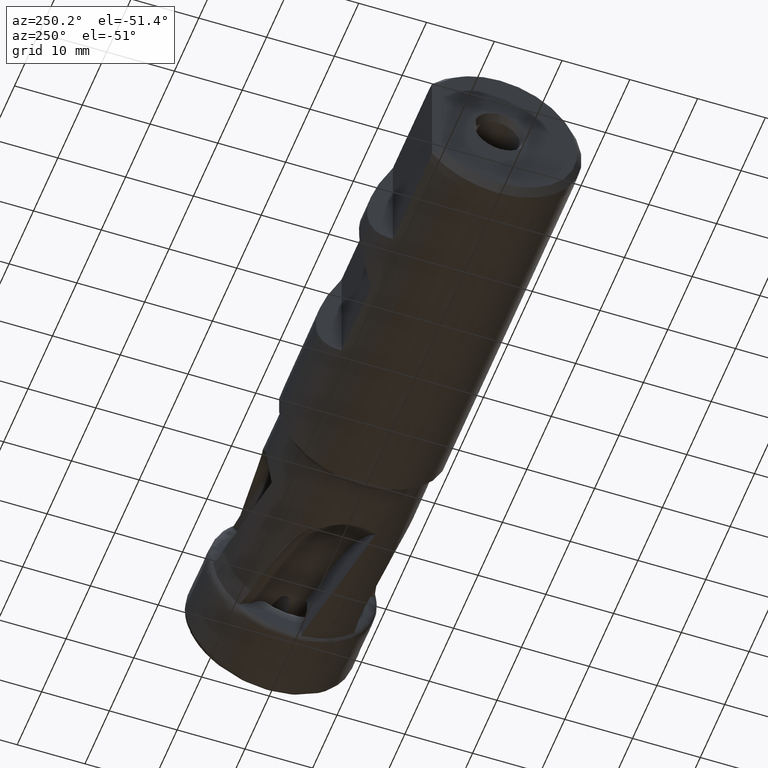
[diagram: clean part render]
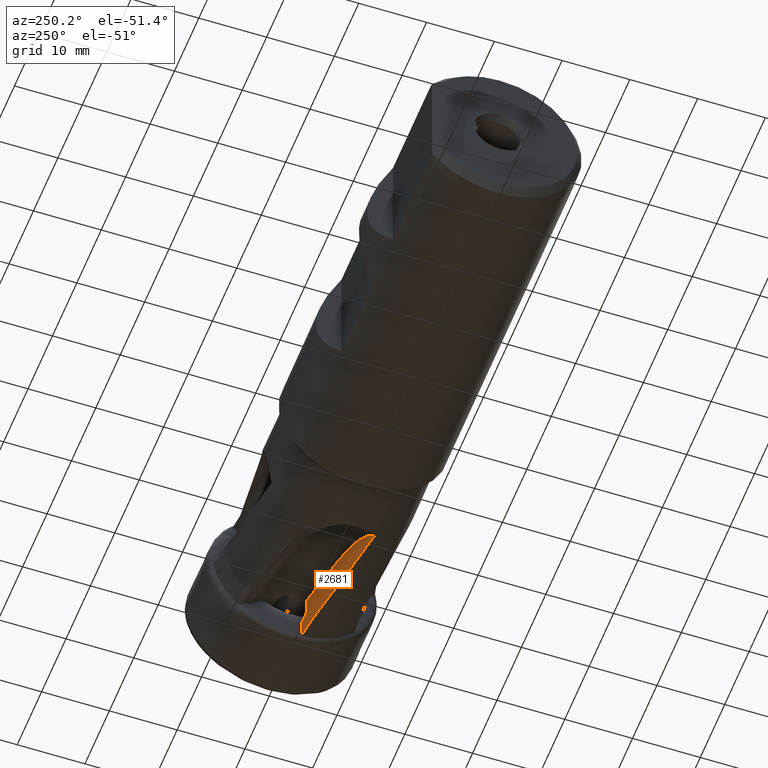
[diagram: same view with one face highlighted and labeled with its STEP entity id]
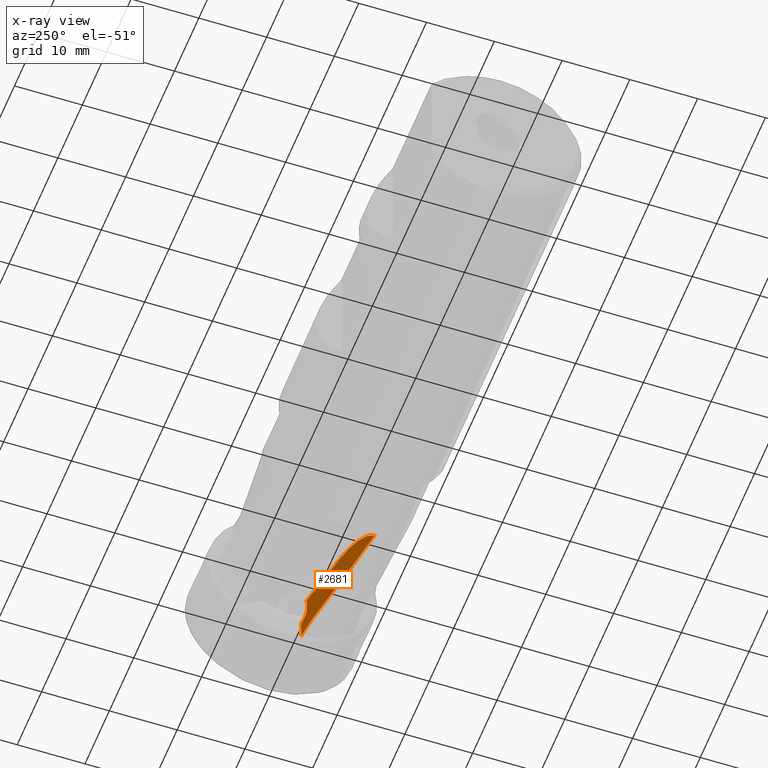
[diagram: x-ray of the same camera — body ghosted, the highlighted face saturated]
A machine part, auxiliary view. The second image highlights one B-rep face of the part: STEP entity #2681.
The next image is the same camera in x-ray: the body ghosted, the highlighted face saturated — about 0% of this face is hidden behind the body in this view.
In plain terms, the highlighted planar face has unit normal (0.2079, -0.9781, 0).
Its self-contained STEP definition (entity closure, byte-faithful):
#256 = FACE_OUTER_BOUND ( 'NONE', #310, .T. ) ;
#310 = EDGE_LOOP ( 'NONE', ( #6669, #6823, #6784, #6807, #6691, #6718, #6791, #6736, #6643, #6746 ) ) ;
#434 = DIRECTION ( 'NONE',  ( 0.2079116908177435500, -0.9781476007338090200, 2.821495148425929200E-017 ) ) ;
#526 = CARTESIAN_POINT ( 'NONE',  ( -19.79513419432084800, -3.186895120494536400, -5.463532229821575800 ) ) ;
#535 = PLANE ( 'NONE',  #5286 ) ;
#574 = DIRECTION ( 'NONE',  ( 0.9781476007338090200, 0.2079116908177435500, 0.0000000000000000000 ) ) ;
#1327 = CARTESIAN_POINT ( 'NONE',  ( -11.53078380057644600, -1.430253216364072700, -6.531136938714817900 ) ) ;
#1330 = CARTESIAN_POINT ( 'NONE',  ( -10.01161172345738500, -1.107343223066565200, -9.148180293830444400 ) ) ;
#1331 = CARTESIAN_POINT ( 'NONE',  ( -12.83564090980896600, -1.707609156973199700, -11.34217664150144800 ) ) ;
#1344 = CARTESIAN_POINT ( 'NONE',  ( -28.99299443426411200, -5.141960667818126200, -10.25286011270081600 ) ) ;
#1365 = CARTESIAN_POINT ( 'NONE',  ( -10.00000000000000200, -1.104875075053400900, -11.91889890336040000 ) ) ;
#1371 = CARTESIAN_POINT ( 'NONE',  ( -19.77760209485570200, -3.183168557713368600, -5.663532229821576000 ) ) ;
#1375 = CARTESIAN_POINT ( 'NONE',  ( -11.49415433721580400, -1.422467383576316900, -7.567804569483675100 ) ) ;
#1383 = CARTESIAN_POINT ( 'NONE',  ( -11.30340768764271600, -1.381922931592988800, -5.663532229821574200 ) ) ;
#2002 =( BOUNDED_CURVE ( )  B_SPLINE_CURVE ( 3, ( #7104, #7106, #7084, #7082 ),
 .UNSPECIFIED., .F., .T. ) 
 B_SPLINE_CURVE_WITH_KNOTS ( ( 4, 4 ),
 ( 1.662960663031078300, 1.663231584771234000 ),
 .UNSPECIFIED. ) 
 CURVE ( )  GEOMETRIC_REPRESENTATION_ITEM ( )  RATIONAL_B_SPLINE_CURVE ( ( 1.000000000000000000, 0.9999999938834509500, 0.9999999938834509500, 1.000000000000000000 ) ) 
 REPRESENTATION_ITEM ( '' )  );
#2045 = B_SPLINE_CURVE_WITH_KNOTS ( 'NONE', 3,
 ( #4202, #4257, #4311, #4213, #4364, #4385, #4350, #4337, #4260, #4392 ),
 .UNSPECIFIED., .F., .F.,
 ( 4, 2, 2, 1, 1, 4 ),
 ( 4.306205707980489400E-005, 0.0001941456705426209500, 0.0003452292840054369600, 0.0006473965109310639000, 0.001251730964782312600, 0.002460399872484805200 ),
 .UNSPECIFIED. ) ;
#2118 = EDGE_CURVE ( 'NONE', #4088, #4112, #4028, .T. ) ;
#2175 = EDGE_CURVE ( 'NONE', #4177, #4174, #6444, .T. ) ;
#2181 = EDGE_CURVE ( 'NONE', #4162, #4083, #6452, .T. ) ;
#2187 = EDGE_CURVE ( 'NONE', #4086, #4162, #4030, .T. ) ;
#2198 = EDGE_CURVE ( 'NONE', #2805, #4086, #6478, .T. ) ;
#2203 = EDGE_CURVE ( 'NONE', #4083, #4174, #4037, .T. ) ;
#2222 = EDGE_CURVE ( 'NONE', #4112, #4177, #4052, .T. ) ;
#2224 = EDGE_CURVE ( 'NONE', #4143, #4088, #4036, .T. ) ;
#2681 = ADVANCED_FACE ( 'NONE', ( #256 ), #535, .F. ) ;
#2804 = VERTEX_POINT ( 'NONE', #6057 ) ;
#2805 = VERTEX_POINT ( 'NONE', #6060 ) ;
#2959 = CARTESIAN_POINT ( 'NONE',  ( -12.83564090980896600, -1.707609156973199700, -11.34217664150144800 ) ) ;
#2960 = CARTESIAN_POINT ( 'NONE',  ( -28.99299443426411200, -5.141960667818126200, -10.25286011270081600 ) ) ;
#2975 = CARTESIAN_POINT ( 'NONE',  ( -23.90021819924637100, -4.059457661948039600, -10.79575134673645000 ) ) ;
#2976 = CARTESIAN_POINT ( 'NONE',  ( -18.46949985436410900, -2.905122843161645400, -11.16188626155323700 ) ) ;
#3243 = EDGE_CURVE ( 'NONE', #2804, #4143, #2002, .T. ) ;
#3378 = EDGE_CURVE ( 'NONE', #2804, #2805, #2045, .T. ) ;
#3607 = CARTESIAN_POINT ( 'NONE',  ( -11.49415433721580400, -1.422467383576316900, -7.567804569483675100 ) ) ;
#3608 = CARTESIAN_POINT ( 'NONE',  ( -11.46317074377286200, -1.415881617485904100, -8.444685786414662900 ) ) ;
#3612 = CARTESIAN_POINT ( 'NONE',  ( -10.85742619105378500, -1.287126638109602000, -9.090403472630535800 ) ) ;
#3613 = CARTESIAN_POINT ( 'NONE',  ( -10.01161172345738500, -1.107343223066565200, -9.148180293830444400 ) ) ;
#3622 = CARTESIAN_POINT ( 'NONE',  ( -11.57922722882525200, -1.440550184908146100, -5.160116743999943800 ) ) ;
#3624 = DIRECTION ( 'NONE',  ( -0.03531082380062419000, -0.007505547296796036100, 0.9993481938154973300 ) ) ;
#3634 = CARTESIAN_POINT ( 'NONE',  ( -0.9747636636059224800, 0.8134981288697190600, -5.663532229821572500 ) ) ;
#3640 = DIRECTION ( 'NONE',  ( 0.9781476007338090200, 0.2079116908177435500, 1.949071483248805600E-016 ) ) ;
#4028 =( BOUNDED_CURVE ( )  B_SPLINE_CURVE ( 3, ( #2959, #2976, #2975, #2960 ),
 .UNSPECIFIED., .F., .T. ) 
 B_SPLINE_CURVE_WITH_KNOTS ( ( 4, 4 ),
 ( 1.720227961580528700, 2.035655008558146900 ),
 .UNSPECIFIED. ) 
 CURVE ( )  GEOMETRIC_REPRESENTATION_ITEM ( )  RATIONAL_B_SPLINE_CURVE ( ( 1.000000000000000000, 0.9917259865312512100, 0.9917259865312512100, 1.000000000000000000 ) ) 
 REPRESENTATION_ITEM ( '' )  );
#4030 =( BOUNDED_CURVE ( )  B_SPLINE_CURVE ( 3, ( #3613, #3612, #3608, #3607 ),
 .UNSPECIFIED., .F., .F. ) 
 B_SPLINE_CURVE_WITH_KNOTS ( ( 4, 4 ),
 ( 3.840127946222913600, 5.363319220252169100 ),
 .UNSPECIFIED. ) 
 CURVE ( )  GEOMETRIC_REPRESENTATION_ITEM ( )  RATIONAL_B_SPLINE_CURVE ( ( 1.000000000000000000, 0.8158238799416693800, 0.8158238799416693800, 1.000000000000000000 ) ) 
 REPRESENTATION_ITEM ( '' )  );
#4036 =( BOUNDED_CURVE ( )  B_SPLINE_CURVE ( 3, ( #8087, #8011, #8090, #7985 ),
 .UNSPECIFIED., .F., .T. ) 
 B_SPLINE_CURVE_WITH_KNOTS ( ( 4, 4 ),
 ( 2.598839765245192000, 2.627777369117606700 ),
 .UNSPECIFIED. ) 
 CURVE ( )  GEOMETRIC_REPRESENTATION_ITEM ( )  RATIONAL_B_SPLINE_CURVE ( ( 1.000000000000000000, 0.9999302191408863100, 0.9999302191408863100, 1.000000000000000000 ) ) 
 REPRESENTATION_ITEM ( '' )  );
#4037 =( BOUNDED_CURVE ( )  B_SPLINE_CURVE ( 3, ( #8070, #8085, #8107, #8056 ),
 .UNSPECIFIED., .F., .F. ) 
 B_SPLINE_CURVE_WITH_KNOTS ( ( 4, 4 ),
 ( 5.363319220252154900, 5.959034245694238200 ),
 .UNSPECIFIED. ) 
 CURVE ( )  GEOMETRIC_REPRESENTATION_ITEM ( )  RATIONAL_B_SPLINE_CURVE ( ( 1.000000000000000000, 0.9706449628720106300, 0.9706449628720106300, 1.000000000000000000 ) ) 
 REPRESENTATION_ITEM ( '' )  );
#4052 = B_SPLINE_CURVE_WITH_KNOTS ( 'NONE', 3,
 ( #8115, #8096, #8052, #7925, #7926, #8048, #8049, #8105, #8073, #8113 ),
 .UNSPECIFIED., .F., .F.,
 ( 4, 2, 2, 2, 4 ),
 ( 2.602085213965210600E-017, 0.002726486009351704500, 0.005452972018703383000, 0.008179458028055060600, 0.01090594403740674000 ),
 .UNSPECIFIED. ) ;
#4083 = VERTEX_POINT ( 'NONE', #1327 ) ;
#4086 = VERTEX_POINT ( 'NONE', #1330 ) ;
#4088 = VERTEX_POINT ( 'NONE', #1331 ) ;
#4112 = VERTEX_POINT ( 'NONE', #1344 ) ;
#4143 = VERTEX_POINT ( 'NONE', #1365 ) ;
#4162 = VERTEX_POINT ( 'NONE', #1375 ) ;
#4174 = VERTEX_POINT ( 'NONE', #1383 ) ;
#4177 = VERTEX_POINT ( 'NONE', #1371 ) ;
#4202 = CARTESIAN_POINT ( 'NONE',  ( -9.984808140878367800, -1.101645945713131100, -11.91919780061954600 ) ) ;
#4213 = CARTESIAN_POINT ( 'NONE',  ( -10.02596953286447600, -1.110395069667247800, -11.72212680697837000 ) ) ;
#4257 = CARTESIAN_POINT ( 'NONE',  ( -10.00079085500450700, -1.105043176473938600, -11.87133277982076700 ) ) ;
#4260 = CARTESIAN_POINT ( 'NONE',  ( -9.995245995055196200, -1.103864580108170300, -9.893314923183144300 ) ) ;
#4311 = CARTESIAN_POINT ( 'NONE',  ( -10.01217807675180700, -1.107463605175516200, -11.82233532588232600 ) ) ;
#4337 = CARTESIAN_POINT ( 'NONE',  ( -10.00494491749276800, -1.105926149713406100, -10.50277777911626100 ) ) ;
#4350 = CARTESIAN_POINT ( 'NONE',  ( -10.01626974908634400, -1.108333316978426000, -11.21381752779342700 ) ) ;
#4364 = CARTESIAN_POINT ( 'NONE',  ( -10.02355266057867100, -1.109881347604179300, -11.67091448137911100 ) ) ;
#4385 = CARTESIAN_POINT ( 'NONE',  ( -10.02112494298774700, -1.109365320300346800, -11.51854883186560300 ) ) ;
#4392 = CARTESIAN_POINT ( 'NONE',  ( -9.988785192125730500, -1.102491294051856100, -9.487006212384189400 ) ) ;
#5286 = AXIS2_PLACEMENT_3D ( 'NONE', #526, #434, #574 ) ;
#6057 = CARTESIAN_POINT ( 'NONE',  ( -9.984808140878367800, -1.101645945713131100, -11.91919780061954600 ) ) ;
#6060 = CARTESIAN_POINT ( 'NONE',  ( -9.988785192125730500, -1.102491294051856100, -9.487006212384189400 ) ) ;
#6444 = LINE ( 'NONE', #3634, #6457 ) ;
#6452 = LINE ( 'NONE', #3622, #6466 ) ;
#6457 = VECTOR ( 'NONE', #3640, 1000.000000000000000 ) ;
#6466 = VECTOR ( 'NONE', #3624, 1000.000000000000000 ) ;
#6478 = LINE ( 'NONE', #8111, #6482 ) ;
#6482 = VECTOR ( 'NONE', #8046, 1000.000000000000000 ) ;
#6643 = ORIENTED_EDGE ( 'NONE', *, *, #2187, .F. ) ;
#6669 = ORIENTED_EDGE ( 'NONE', *, *, #3378, .F. ) ;
#6691 = ORIENTED_EDGE ( 'NONE', *, *, #2222, .T. ) ;
#6718 = ORIENTED_EDGE ( 'NONE', *, *, #2175, .T. ) ;
#6736 = ORIENTED_EDGE ( 'NONE', *, *, #2181, .F. ) ;
#6746 = ORIENTED_EDGE ( 'NONE', *, *, #2198, .F. ) ;
#6784 = ORIENTED_EDGE ( 'NONE', *, *, #2224, .T. ) ;
#6791 = ORIENTED_EDGE ( 'NONE', *, *, #2203, .F. ) ;
#6807 = ORIENTED_EDGE ( 'NONE', *, *, #2118, .T. ) ;
#6823 = ORIENTED_EDGE ( 'NONE', *, *, #3243, .T. ) ;
#7082 = CARTESIAN_POINT ( 'NONE',  ( -10.00000000000000200, -1.104875075053400900, -11.91889890336040000 ) ) ;
#7084 = CARTESIAN_POINT ( 'NONE',  ( -9.994936110470034100, -1.103798712106234700, -11.91899868158670200 ) ) ;
#7104 = CARTESIAN_POINT ( 'NONE',  ( -9.984808140878367800, -1.101645945713131100, -11.91919780061954600 ) ) ;
#7106 = CARTESIAN_POINT ( 'NONE',  ( -9.989872157398512100, -1.102722335652893200, -11.91909831400702700 ) ) ;
#7925 = CARTESIAN_POINT ( 'NONE',  ( -26.44052185139985800, -4.599415871847542200, -7.763874488895330800 ) ) ;
#7926 = CARTESIAN_POINT ( 'NONE',  ( -25.69726122660100400, -4.441430949015598100, -7.280483437967646400 ) ) ;
#7985 = CARTESIAN_POINT ( 'NONE',  ( -12.83564090980896600, -1.707609156973199700, -11.34217664150144800 ) ) ;
#8011 = CARTESIAN_POINT ( 'NONE',  ( -10.96861494261506200, -1.310760536837849400, -11.72828823331292200 ) ) ;
#8046 = DIRECTION ( 'NONE',  ( -0.06721027160745213200, -0.01428598424178717200, 0.9976365520793110100 ) ) ;
#8048 = CARTESIAN_POINT ( 'NONE',  ( -24.09819201680873500, -4.101538295909785200, -6.484167213698144700 ) ) ;
#8049 = CARTESIAN_POINT ( 'NONE',  ( -23.26986248886328900, -3.925471419519958700, -6.184498392235774100 ) ) ;
#8052 = CARTESIAN_POINT ( 'NONE',  ( -27.81007324411540800, -4.890523006913530100, -8.889577271996696300 ) ) ;
#8056 = CARTESIAN_POINT ( 'NONE',  ( -11.30340768764271600, -1.381922931592988800, -5.663532229821574200 ) ) ;
#8070 = CARTESIAN_POINT ( 'NONE',  ( -11.53078380057644600, -1.430253216364072700, -6.531136938714817900 ) ) ;
#8073 = CARTESIAN_POINT ( 'NONE',  ( -20.66780898222180000, -3.372387872866864800, -5.667396196023199600 ) ) ;
#8085 = CARTESIAN_POINT ( 'NONE',  ( -11.54185865199737600, -1.432607248703111200, -6.217702371830486500 ) ) ;
#8087 = CARTESIAN_POINT ( 'NONE',  ( -10.00000000000000200, -1.104875075053400900, -11.91889890336040000 ) ) ;
#8090 = CARTESIAN_POINT ( 'NONE',  ( -11.91389454164056600, -1.511685918223507800, -11.53603406369881800 ) ) ;
#8096 = CARTESIAN_POINT ( 'NONE',  ( -28.44126282672527900, -5.024686494355007600, -9.538628929359454400 ) ) ;
#8105 = CARTESIAN_POINT ( 'NONE',  ( -21.55756004440932500, -3.561510299387680600, -5.775481725713544500 ) ) ;
#8107 = CARTESIAN_POINT ( 'NONE',  ( -11.46377444969510900, -1.416009939140996400, -5.919754532308019200 ) ) ;
#8111 = CARTESIAN_POINT ( 'NONE',  ( -10.30486366376717700, -1.169675847201872200, -4.795291254340356500 ) ) ;
#8113 = CARTESIAN_POINT ( 'NONE',  ( -19.77760209485570200, -3.183168557713368600, -5.663532229821576000 ) ) ;
#8115 = CARTESIAN_POINT ( 'NONE',  ( -28.99299443426411200, -5.141960667818126200, -10.25286011270081600 ) ) ;